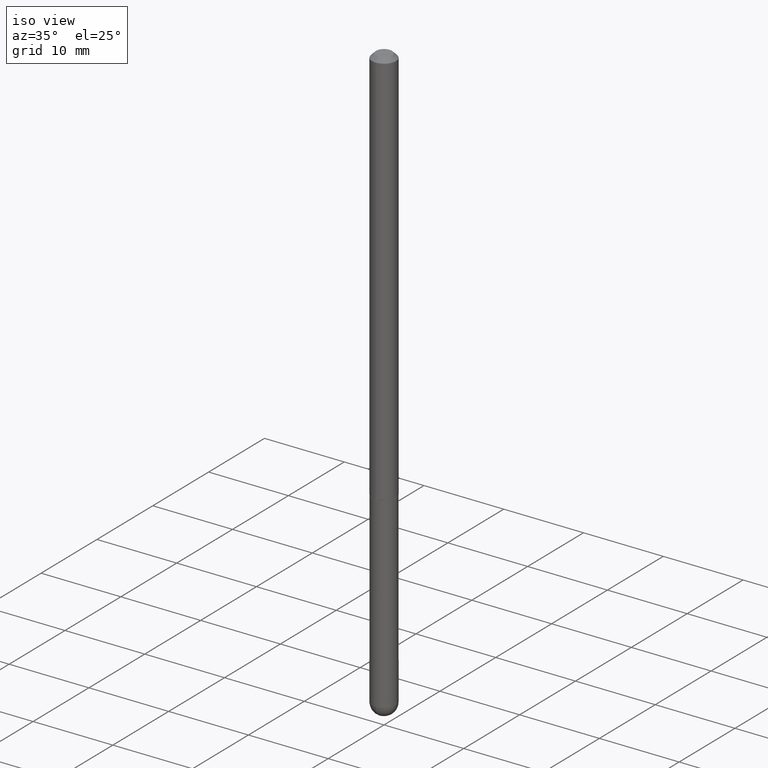
[diagram: clean part render]
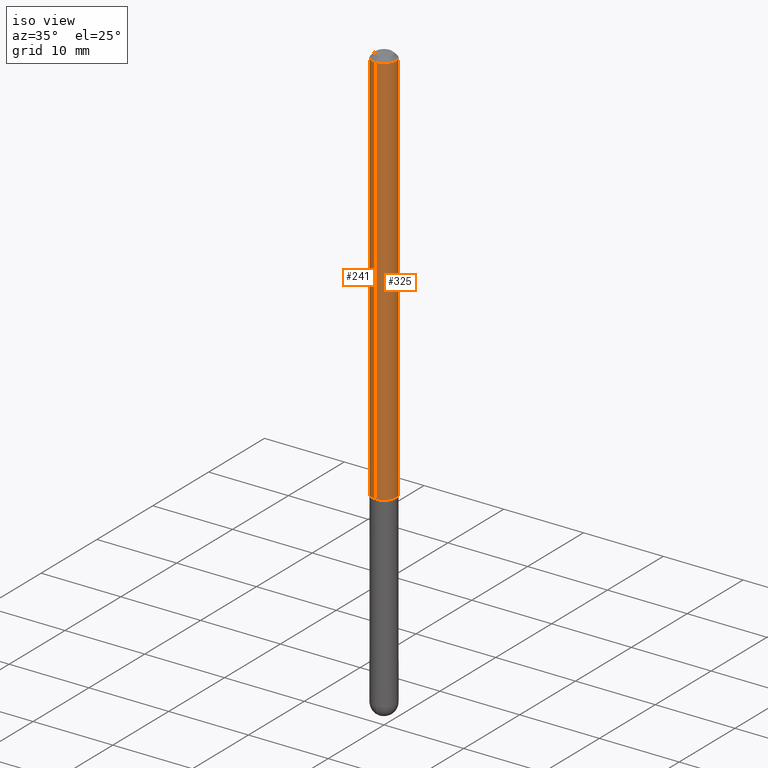
[diagram: same view with one multi-face feature highlighted, each face labeled with its STEP entity id]
A machine part, iso view. The highlighted faces form ONE feature: a constant-radius fillet chain: 2 tangent blend faces with common blend radius 1.4999 mm. The faces share edges in the B-rep.
Their STEP definitions:
[1] entity #241 (Cylinder):
#40 = ORIENTED_EDGE ( 'NONE', *, *, #261, .T. ) ;
#65 = AXIS2_PLACEMENT_3D ( 'NONE', #97, #109, #131 ) ;
#69 = EDGE_CURVE ( 'NONE', #89, #337, #209, .T. ) ;
#75 = DIRECTION ( 'NONE',  ( -6.982962677686265922E-15, -1.000000000000000000, 3.481260124123203654E-15 ) ) ;
#89 = VERTEX_POINT ( 'NONE', #156 ) ;
#97 = CARTESIAN_POINT ( 'NONE',  ( 4.905212484552284025E-31, -6.962520248246431022E-17, -0.02000000000000006981 ) ) ;
#99 = CIRCLE ( 'NONE', #157, 0.05905000000000020649 ) ;
#106 = LINE ( 'NONE', #370, #180 ) ;
#107 = EDGE_CURVE ( 'NONE', #337, #402, #220, .T. ) ;
#109 = DIRECTION ( 'NONE',  ( -2.452606242276133797E-29, 3.481260124123203654E-15, 1.000000000000000000 ) ) ;
#131 = DIRECTION ( 'NONE',  ( -6.982962677686265922E-15, -1.000000000000000000, 3.469747663417776213E-15 ) ) ;
#156 = CARTESIAN_POINT ( 'NONE',  ( 4.195754854663646379E-16, 0.05904999999999335780, -1.967500000000000027 ) ) ;
#157 = AXIS2_PLACEMENT_3D ( 'NONE', #198, #165, #329 ) ;
#165 = DIRECTION ( 'NONE',  ( -2.452606242276133797E-29, 3.481260124123203654E-15, 1.000000000000000000 ) ) ;
#178 = CARTESIAN_POINT ( 'NONE',  ( 0.000000000000000000, 0.000000000000000000, 0.000000000000000000 ) ) ;
#180 = VECTOR ( 'NONE', #285, 39.37007874015748143 ) ;
#194 = EDGE_LOOP ( 'NONE', ( #324, #222, #40, #389 ) ) ;
#198 = CARTESIAN_POINT ( 'NONE',  ( 4.825502781678292621E-29, -6.849379294212400691E-15, -1.967499999999999805 ) ) ;
#209 = LINE ( 'NONE', #342, #231 ) ;
#220 = CIRCLE ( 'NONE', #65, 0.05905000000000001914 ) ;
#222 = ORIENTED_EDGE ( 'NONE', *, *, #302, .T. ) ;
#231 = VECTOR ( 'NONE', #404, 39.37007874015748143 ) ;
#241 = ADVANCED_FACE ( 'NONE', ( #259 ), #392, .T. ) ;
#259 = FACE_OUTER_BOUND ( 'NONE', #194, .T. ) ;
#261 = EDGE_CURVE ( 'NONE', #321, #402, #106, .T. ) ;
#262 = DIRECTION ( 'NONE',  ( -2.452606242276133797E-29, 3.481260124123203654E-15, 1.000000000000000000 ) ) ;
#285 = DIRECTION ( 'NONE',  ( -2.452606242276134078E-29, 3.481260124123204048E-15, 1.000000000000000000 ) ) ;
#301 = AXIS2_PLACEMENT_3D ( 'NONE', #178, #262, #75 ) ;
#302 = EDGE_CURVE ( 'NONE', #89, #321, #99, .T. ) ;
#321 = VERTEX_POINT ( 'NONE', #396 ) ;
#324 = ORIENTED_EDGE ( 'NONE', *, *, #69, .F. ) ;
#329 = DIRECTION ( 'NONE',  ( -6.982962677686265922E-15, -1.000000000000000000, 4.626330217890353559E-15 ) ) ;
#337 = VERTEX_POINT ( 'NONE', #406 ) ;
#342 = CARTESIAN_POINT ( 'NONE',  ( 4.195754854663398874E-16, 0.05905000000000010935, -2.055684103294755676E-16 ) ) ;
#370 = CARTESIAN_POINT ( 'NONE',  ( -4.123439461173747722E-16, -0.05905000000000010935, 2.055684103294755676E-16 ) ) ;
#386 = CARTESIAN_POINT ( 'NONE',  ( -4.051124067684085231E-16, -0.05905000000000008159, -0.01999999999999986511 ) ) ;
#389 = ORIENTED_EDGE ( 'NONE', *, *, #107, .F. ) ;
#392 = CYLINDRICAL_SURFACE ( 'NONE', #301, 0.05905000000000010935 ) ;
#396 = CARTESIAN_POINT ( 'NONE',  ( -4.123439461173271448E-16, -0.05905000000000704824, -1.967499999999999361 ) ) ;
#402 = VERTEX_POINT ( 'NONE', #386 ) ;
#404 = DIRECTION ( 'NONE',  ( -2.452606242276134078E-29, 3.481260124123204048E-15, 1.000000000000000000 ) ) ;
#406 = CARTESIAN_POINT ( 'NONE',  ( 4.123439461173745750E-16, 0.05904999999999994975, -0.02000000000000027450 ) ) ;
[2] entity #325 (Cylinder):
#5 = ORIENTED_EDGE ( 'NONE', *, *, #17, .F. ) ;
#17 = EDGE_CURVE ( 'NONE', #402, #337, #378, .T. ) ;
#69 = EDGE_CURVE ( 'NONE', #89, #337, #209, .T. ) ;
#78 = ORIENTED_EDGE ( 'NONE', *, *, #261, .F. ) ;
#83 = EDGE_CURVE ( 'NONE', #321, #89, #356, .T. ) ;
#88 = DIRECTION ( 'NONE',  ( -2.452606242276133797E-29, 3.481260124123203654E-15, 1.000000000000000000 ) ) ;
#89 = VERTEX_POINT ( 'NONE', #156 ) ;
#106 = LINE ( 'NONE', #370, #180 ) ;
#119 = AXIS2_PLACEMENT_3D ( 'NONE', #212, #272, #276 ) ;
#156 = CARTESIAN_POINT ( 'NONE',  ( 4.195754854663646379E-16, 0.05904999999999335780, -1.967500000000000027 ) ) ;
#180 = VECTOR ( 'NONE', #285, 39.37007874015748143 ) ;
#191 = CYLINDRICAL_SURFACE ( 'NONE', #119, 0.05905000000000010935 ) ;
#209 = LINE ( 'NONE', #342, #231 ) ;
#212 = CARTESIAN_POINT ( 'NONE',  ( 0.000000000000000000, 0.000000000000000000, 0.000000000000000000 ) ) ;
#219 = DIRECTION ( 'NONE',  ( -6.982962677686265922E-15, -1.000000000000000000, 4.626330217890353559E-15 ) ) ;
#231 = VECTOR ( 'NONE', #404, 39.37007874015748143 ) ;
#244 = AXIS2_PLACEMENT_3D ( 'NONE', #345, #284, #309 ) ;
#253 = ORIENTED_EDGE ( 'NONE', *, *, #69, .T. ) ;
#261 = EDGE_CURVE ( 'NONE', #321, #402, #106, .T. ) ;
#267 = EDGE_LOOP ( 'NONE', ( #283, #253, #5, #78 ) ) ;
#272 = DIRECTION ( 'NONE',  ( -2.452606242276133797E-29, 3.481260124123203654E-15, 1.000000000000000000 ) ) ;
#276 = DIRECTION ( 'NONE',  ( -6.982962677686265922E-15, -1.000000000000000000, 3.481260124123203654E-15 ) ) ;
#283 = ORIENTED_EDGE ( 'NONE', *, *, #83, .T. ) ;
#284 = DIRECTION ( 'NONE',  ( -2.452606242276133797E-29, 3.481260124123203654E-15, 1.000000000000000000 ) ) ;
#285 = DIRECTION ( 'NONE',  ( -2.452606242276134078E-29, 3.481260124123204048E-15, 1.000000000000000000 ) ) ;
#309 = DIRECTION ( 'NONE',  ( -6.982962677686265922E-15, -1.000000000000000000, 3.469747663417776213E-15 ) ) ;
#321 = VERTEX_POINT ( 'NONE', #396 ) ;
#325 = ADVANCED_FACE ( 'NONE', ( #357 ), #191, .T. ) ;
#337 = VERTEX_POINT ( 'NONE', #406 ) ;
#342 = CARTESIAN_POINT ( 'NONE',  ( 4.195754854663398874E-16, 0.05905000000000010935, -2.055684103294755676E-16 ) ) ;
#345 = CARTESIAN_POINT ( 'NONE',  ( 4.905212484552284025E-31, -6.962520248246431022E-17, -0.02000000000000006981 ) ) ;
#356 = CIRCLE ( 'NONE', #395, 0.05905000000000020649 ) ;
#357 = FACE_OUTER_BOUND ( 'NONE', #267, .T. ) ;
#370 = CARTESIAN_POINT ( 'NONE',  ( -4.123439461173747722E-16, -0.05905000000000010935, 2.055684103294755676E-16 ) ) ;
#378 = CIRCLE ( 'NONE', #244, 0.05905000000000001914 ) ;
#386 = CARTESIAN_POINT ( 'NONE',  ( -4.051124067684085231E-16, -0.05905000000000008159, -0.01999999999999986511 ) ) ;
#388 = CARTESIAN_POINT ( 'NONE',  ( 4.825502781678292621E-29, -6.849379294212400691E-15, -1.967499999999999805 ) ) ;
#395 = AXIS2_PLACEMENT_3D ( 'NONE', #388, #88, #219 ) ;
#396 = CARTESIAN_POINT ( 'NONE',  ( -4.123439461173271448E-16, -0.05905000000000704824, -1.967499999999999361 ) ) ;
#402 = VERTEX_POINT ( 'NONE', #386 ) ;
#404 = DIRECTION ( 'NONE',  ( -2.452606242276134078E-29, 3.481260124123204048E-15, 1.000000000000000000 ) ) ;
#406 = CARTESIAN_POINT ( 'NONE',  ( 4.123439461173745750E-16, 0.05904999999999994975, -0.02000000000000027450 ) ) ;